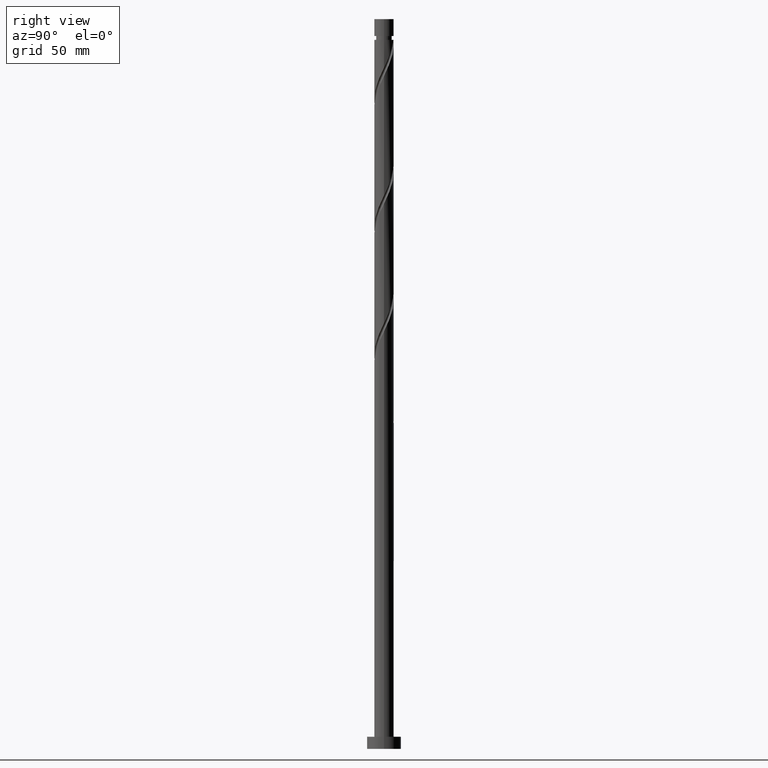
[diagram: clean part render]
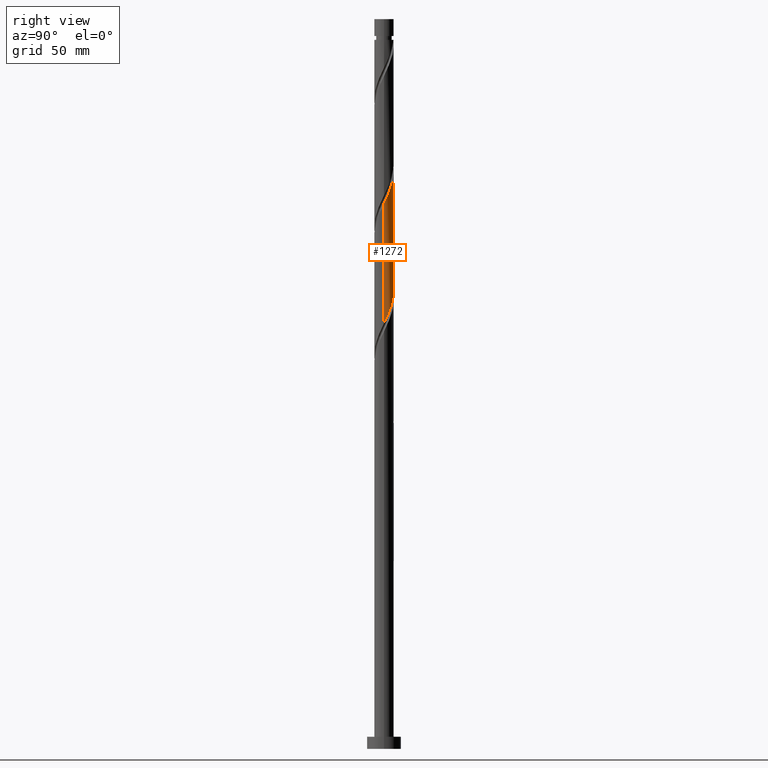
[diagram: same view with one face highlighted and labeled with its STEP entity id]
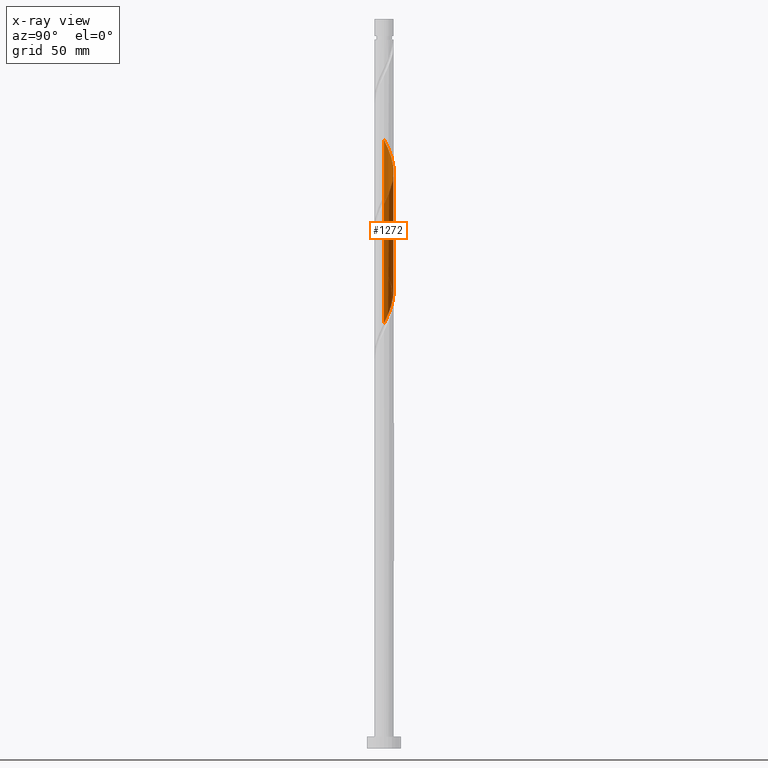
[diagram: x-ray of the same camera — body ghosted, the highlighted face saturated]
A machine part, right view. The second image highlights one B-rep face of the part: STEP entity #1272.
The next image is the same camera in x-ray: the body ghosted, the highlighted face saturated — about 0% of this face is hidden behind the body in this view.
In plain terms, the highlighted cylindrical surface (edge-blend (fillet) strip) has radius 4 mm, axis along (-0, -0, -1).
Its self-contained STEP definition (entity closure, byte-faithful):
#106 = EDGE_CURVE ( 'NONE', #1724, #1337, #1738, .T. ) ;
#110 = CARTESIAN_POINT ( 'NONE',  ( 3.830313472238021433, 1.237667874093733911, 226.7666729475623981 ) ) ;
#162 = CARTESIAN_POINT ( 'NONE',  ( -4.000000000000000000, 0.000000000000000000, 300.0000000000000000 ) ) ;
#183 = ORIENTED_EDGE ( 'NONE', *, *, #935, .T. ) ;
#187 = CARTESIAN_POINT ( 'NONE',  ( -4.000000000000004441, 0.04813158866556626475, 250.3042931814312055 ) ) ;
#197 = DIRECTION ( 'NONE',  ( -1.000000000000000000, 0.000000000000000000, 0.000000000000000000 ) ) ;
#203 =( BOUNDED_CURVE ( )  B_SPLINE_CURVE ( 2, ( #1891, #401, #981, #1584, #239, #411, #1742, #419, #998, #838, #1426, #1280, #700, #1291, #269, #1856, #534, #707, #1633, #852, #718, #1152, #1443, #1740, #417, #1762, #299, #1476, #1748, #1007, #1611 ),
 .UNSPECIFIED., .F., .T. ) 
 B_SPLINE_CURVE_WITH_KNOTS ( ( 3, 2, 2, 2, 2, 2, 2, 2, 2, 2, 2, 2, 2, 2, 2, 3 ),
 ( 0.6795303401299224166, 0.6875000000000000000, 0.6964285714285713969, 0.7053571428571429047, 0.7142857142857143016, 0.7232142857142856984, 0.7321428571428570953, 0.7410714285714286031, 0.7500000000000000000, 0.7589285714285713969, 0.7678571428571429047, 0.7767857142857143016, 0.7857142857142856984, 0.7946428571428570953, 0.8035714285714286031, 0.8045303401299221946 ),
 .UNSPECIFIED. ) 
 CURVE ( )  GEOMETRIC_REPRESENTATION_ITEM ( )  RATIONAL_B_SPLINE_CURVE ( ( 0.9079949616362031906, 0.9039886423360669054, 0.9090909090909334855, 0.9033747362666083580, 0.9090909090909334855, 0.9033747362666083580, 0.9090909090909334855, 0.9033747362666083580, 0.9090909090909334855, 0.9033747362666083580, 0.9090909090909334855, 0.9033747362666083580, 0.9090909090909334855, 0.9033747362666083580, 0.9090909090909334855, 0.9033747362666083580, 0.9090909090909334855, 0.9033747362666083580, 0.9090909090909334855, 0.9033747362666083580, 0.9090909090909334855, 0.9033747362666083580, 0.9090909090909334855, 0.9033747362666083580, 0.9090909090909334855, 0.9033747362666083580, 0.9090909090909334855, 0.9033747362666083580, 0.9090909090909334855, 0.9084770030214751602, 0.9079949616362034126 ) ) 
 REPRESENTATION_ITEM ( '' )  );
#213 = CYLINDRICAL_SURFACE ( 'NONE', #709, 4.000000000000000000 ) ;
#222 = EDGE_LOOP ( 'NONE', ( #921, #183, #1528, #969 ) ) ;
#227 = CARTESIAN_POINT ( 'NONE',  ( -3.877165057846941654, 0.9836620935111629604, 248.3291729475624550 ) ) ;
#239 = CARTESIAN_POINT ( 'NONE',  ( -3.644592988728935445, 1.648314880873155142, 197.7041729475623981 ) ) ;
#267 = CARTESIAN_POINT ( 'NONE',  ( -0.3543120252768621192, 4.009686527761989971, 238.0166729475623981 ) ) ;
#269 = CARTESIAN_POINT ( 'NONE',  ( -0.09624924134434953427, 3.998841842776559741, 188.3291729475623413 ) ) ;
#275 = CARTESIAN_POINT ( 'NONE',  ( -2.417986421170497557, 3.186430866508032977, 242.7041729475623981 ) ) ;
#299 = CARTESIAN_POINT ( 'NONE',  ( 3.877165057846936769, 0.9836620935111599628, 177.0791729475623697 ) ) ;
#309 = CARTESIAN_POINT ( 'NONE',  ( 2.568487795263851847, 3.066410025678347306, 231.4541729475624265 ) ) ;
#331 = CARTESIAN_POINT ( 'NONE',  ( -3.998841842776565958, 0.09624924134435045020, 250.2041729475624265 ) ) ;
#366 = CARTESIAN_POINT ( 'NONE',  ( -3.766332957902740475, 1.420513679056762291, 247.3916729475623981 ) ) ;
#401 = CARTESIAN_POINT ( 'NONE',  ( -3.999999999999994671, 0.4020151261037036572, 200.4154189465048432 ) ) ;
#408 = CARTESIAN_POINT ( 'NONE',  ( 3.920000000000005258, 0.7959899496852977929, 225.8291729475624265 ) ) ;
#411 = CARTESIAN_POINT ( 'NONE',  ( -3.458872505219855675, 2.058961887652576817, 196.7666729475624550 ) ) ;
#417 = CARTESIAN_POINT ( 'NONE',  ( 3.561071027285505952, 1.821750020894124855, 178.9541729475623981 ) ) ;
#419 = CARTESIAN_POINT ( 'NONE',  ( -2.913989227796199621, 2.777010954688412081, 194.8916729475624834 ) ) ;
#443 = CARTESIAN_POINT ( 'NONE',  ( -4.000000000000005329, 4.955356809146651200E-15, 250.4046558696563238 ) ) ;
#451 = CARTESIAN_POINT ( 'NONE',  ( 2.913989227796204950, 2.777010954688415634, 230.5166729475623981 ) ) ;
#473 = CARTESIAN_POINT ( 'NONE',  ( 0.000000000000000000, 0.000000000000000000, 300.0000000000000000 ) ) ;
#534 = CARTESIAN_POINT ( 'NONE',  ( 0.7959899496852991252, 3.919999999999999041, 186.4541729475623981 ) ) ;
#542 = CARTESIAN_POINT ( 'NONE',  ( -3.355809096668281200, 2.222986362731496079, 245.5166729475623981 ) ) ;
#558 = CARTESIAN_POINT ( 'NONE',  ( 2.222986362731496524, 3.355809096668280755, 232.3916729475624265 ) ) ;
#574 = CARTESIAN_POINT ( 'NONE',  ( 3.186430866508034754, 2.417986421170496669, 229.5791729475624265 ) ) ;
#657 = DIRECTION ( 'NONE',  ( -0.000000000000000000, -0.000000000000000000, -1.000000000000000000 ) ) ;
#687 = CARTESIAN_POINT ( 'NONE',  ( 4.000000000000006217, 0.4020151261036807311, 224.9929269486199814 ) ) ;
#700 = CARTESIAN_POINT ( 'NONE',  ( -0.9836620935111607400, 3.877165057846935436, 190.2041729475623697 ) ) ;
#707 = CARTESIAN_POINT ( 'NONE',  ( 1.237667874093734133, 3.830313472238014771, 185.5166729475624265 ) ) ;
#709 = AXIS2_PLACEMENT_3D ( 'NONE', #473, #657, #197 ) ;
#710 = LINE ( 'NONE', #1462, #1261 ) ;
#718 = CARTESIAN_POINT ( 'NONE',  ( 2.417986421170494893, 3.186430866508027648, 182.7041729475623981 ) ) ;
#753 = DIRECTION ( 'NONE',  ( -0.000000000000000000, -0.000000000000000000, -1.000000000000000000 ) ) ;
#816 = CARTESIAN_POINT ( 'NONE',  ( -3.987997157791141500, 0.5468105079655638523, 249.2666729475624265 ) ) ;
#838 = CARTESIAN_POINT ( 'NONE',  ( -2.222986362731492527, 3.355809096668277203, 193.0166729475623981 ) ) ;
#851 = CARTESIAN_POINT ( 'NONE',  ( -0.7959899496852976819, 3.920000000000005258, 238.9541729475624834 ) ) ;
#852 = CARTESIAN_POINT ( 'NONE',  ( 2.058961887652577261, 3.458872505219854787, 183.6416729475624550 ) ) ;
#858 = CARTESIAN_POINT ( 'NONE',  ( -2.777010954688416522, 2.913989227796204950, 243.6416729475623981 ) ) ;
#881 = LINE ( 'NONE', #162, #1419 ) ;
#921 = ORIENTED_EDGE ( 'NONE', *, *, #106, .F. ) ;
#935 = EDGE_CURVE ( 'NONE', #1724, #942, #710, .T. ) ;
#942 = VERTEX_POINT ( 'NONE', #1750 ) ;
#969 = ORIENTED_EDGE ( 'NONE', *, *, #1617, .F. ) ;
#981 = CARTESIAN_POINT ( 'NONE',  ( -3.919999999999999041, 0.7959899496852982370, 199.5791729475623981 ) ) ;
#996 = CARTESIAN_POINT ( 'NONE',  ( 0.5468105079655646295, 3.987997157791141500, 236.1416729475625118 ) ) ;
#998 = CARTESIAN_POINT ( 'NONE',  ( -2.568487795263846518, 3.066410025678343754, 193.9541729475623697 ) ) ;
#1006 = CARTESIAN_POINT ( 'NONE',  ( -2.058961887652579037, 3.458872505219861004, 241.7666729475624265 ) ) ;
#1007 = CARTESIAN_POINT ( 'NONE',  ( 3.999999999999999112, 0.04813158866555360821, 175.1040527136935054 ) ) ;
#1145 = CARTESIAN_POINT ( 'NONE',  ( 1.821750020894129518, 3.561071027285510837, 233.3291729475624834 ) ) ;
#1151 = CARTESIAN_POINT ( 'NONE',  ( 0.9836620935111639596, 3.877165057846941654, 235.2041729475624265 ) ) ;
#1152 = CARTESIAN_POINT ( 'NONE',  ( 2.777010954688412969, 2.913989227796199177, 181.7666729475623697 ) ) ;
#1261 = VECTOR ( 'NONE', #1453, 1000.000000000000000 ) ;
#1268 = CARTESIAN_POINT ( 'NONE',  ( -1.648314880873156918, 3.644592988728940774, 240.8291729475624265 ) ) ;
#1272 = ADVANCED_FACE ( 'NONE', ( #1378 ), #213, .T. ) ;
#1280 = CARTESIAN_POINT ( 'NONE',  ( -1.420513679056759626, 3.766332957902735590, 191.1416729475623981 ) ) ;
#1291 = CARTESIAN_POINT ( 'NONE',  ( -0.5468105079655622980, 3.987997157791136171, 189.2666729475624265 ) ) ;
#1296 = CARTESIAN_POINT ( 'NONE',  ( 3.458872505219861448, 2.058961887652578149, 228.6416729475623981 ) ) ;
#1311 = EDGE_CURVE ( 'NONE', #1502, #942, #203, .T. ) ;
#1337 = VERTEX_POINT ( 'NONE', #443 ) ;
#1346 = CARTESIAN_POINT ( 'NONE',  ( -3.999999999999998224, 2.194088707664344929E-15, 201.2536900254683871 ) ) ;
#1352 = CARTESIAN_POINT ( 'NONE',  ( -4.000000000000005329, 4.955356809146651200E-15, 250.4046558696563238 ) ) ;
#1378 = FACE_OUTER_BOUND ( 'NONE', #222, .T. ) ;
#1398 = CARTESIAN_POINT ( 'NONE',  ( 4.000000000000005329, 6.119567143825683200E-16, 224.1546558696563523 ) ) ;
#1419 = VECTOR ( 'NONE', #753, 1000.000000000000000 ) ;
#1426 = CARTESIAN_POINT ( 'NONE',  ( -1.821750020894125521, 3.561071027285505952, 192.0791729475623697 ) ) ;
#1442 = CARTESIAN_POINT ( 'NONE',  ( -1.237667874093734799, 3.830313472238021433, 239.8916729475624550 ) ) ;
#1443 = CARTESIAN_POINT ( 'NONE',  ( 3.066410025678344198, 2.568487795263845186, 180.8291729475623697 ) ) ;
#1453 = DIRECTION ( 'NONE',  ( -0.000000000000000000, -0.000000000000000000, -1.000000000000000000 ) ) ;
#1462 = CARTESIAN_POINT ( 'NONE',  ( 4.000000000000000000, 4.898587196589412829E-16, 300.0000000000000000 ) ) ;
#1476 = CARTESIAN_POINT ( 'NONE',  ( 3.987997157791136171, 0.5468105079655612988, 176.1416729475624550 ) ) ;
#1502 = VERTEX_POINT ( 'NONE', #1346 ) ;
#1508 = CARTESIAN_POINT ( 'NONE',  ( -3.561071027285510837, 1.821750020894129074, 246.4541729475624834 ) ) ;
#1528 = ORIENTED_EDGE ( 'NONE', *, *, #1311, .F. ) ;
#1584 = CARTESIAN_POINT ( 'NONE',  ( -3.830313472238014771, 1.237667874093733245, 198.6416729475624265 ) ) ;
#1601 = CARTESIAN_POINT ( 'NONE',  ( 0.09624924134435140777, 3.998841842776565958, 237.0791729475624834 ) ) ;
#1611 = CARTESIAN_POINT ( 'NONE',  ( 3.999999999999998224, -2.634399026549366747E-15, 175.0036900254684156 ) ) ;
#1617 = EDGE_CURVE ( 'NONE', #1337, #1502, #881, .T. ) ;
#1633 = CARTESIAN_POINT ( 'NONE',  ( 1.648314880873155586, 3.644592988728935001, 184.5791729475623697 ) ) ;
#1724 = VERTEX_POINT ( 'NONE', #1398 ) ;
#1738 =( BOUNDED_CURVE ( )  B_SPLINE_CURVE ( 2, ( #1906, #687, #408, #110, #1887, #1296, #574, #451, #309, #558, #1145, #1739, #1151, #996, #1601, #267, #851, #1442, #1268, #1006, #275, #858, #1867, #542, #1508, #366, #227, #816, #331, #187, #1352 ),
 .UNSPECIFIED., .F., .T. ) 
 B_SPLINE_CURVE_WITH_KNOTS ( ( 3, 2, 2, 2, 2, 2, 2, 2, 2, 2, 2, 2, 2, 2, 2, 3 ),
 ( 0.4295303401299219725, 0.4375000000000000000, 0.4464285714285713969, 0.4553571428571429047, 0.4642857142857143016, 0.4732142857142856984, 0.4821428571428570953, 0.4910714285714286031, 0.5000000000000000000, 0.5089285714285713969, 0.5178571428571427937, 0.5267857142857143016, 0.5357142857142856984, 0.5446428571428572063, 0.5535714285714286031, 0.5545303401299219725 ),
 .UNSPECIFIED. ) 
 CURVE ( )  GEOMETRIC_REPRESENTATION_ITEM ( )  RATIONAL_B_SPLINE_CURVE ( ( 0.9079949616362096299, 0.9039886423360725676, 0.9090909090909393697, 0.9033747362666143532, 0.9090909090909393697, 0.9033747362666143532, 0.9090909090909393697, 0.9033747362666143532, 0.9090909090909393697, 0.9033747362666143532, 0.9090909090909393697, 0.9033747362666143532, 0.9090909090909393697, 0.9033747362666143532, 0.9090909090909393697, 0.9033747362666143532, 0.9090909090909393697, 0.9033747362666143532, 0.9090909090909393697, 0.9033747362666143532, 0.9090909090909393697, 0.9033747362666143532, 0.9090909090909393697, 0.9033747362666143532, 0.9090909090909393697, 0.9033747362666143532, 0.9090909090909393697, 0.9033747362666143532, 0.9090909090909393697, 0.9084770030214812664, 0.9079949616362096299 ) ) 
 REPRESENTATION_ITEM ( '' )  );
#1739 = CARTESIAN_POINT ( 'NONE',  ( 1.420513679056762957, 3.766332957902740475, 234.2666729475624550 ) ) ;
#1740 = CARTESIAN_POINT ( 'NONE',  ( 3.355809096668277203, 2.222986362731491639, 179.8916729475624265 ) ) ;
#1742 = CARTESIAN_POINT ( 'NONE',  ( -3.186430866508028092, 2.417986421170494449, 195.8291729475623981 ) ) ;
#1748 = CARTESIAN_POINT ( 'NONE',  ( 3.998841842776559741, 0.09624924134434886813, 175.2041729475624265 ) ) ;
#1750 = CARTESIAN_POINT ( 'NONE',  ( 3.999999999999998224, -2.634399026549366747E-15, 175.0036900254684156 ) ) ;
#1762 = CARTESIAN_POINT ( 'NONE',  ( 3.766332957902735590, 1.420513679056758516, 178.0166729475624265 ) ) ;
#1856 = CARTESIAN_POINT ( 'NONE',  ( 0.3543120252768630074, 4.009686527761982866, 187.3916729475624265 ) ) ;
#1867 = CARTESIAN_POINT ( 'NONE',  ( -3.066410025678347306, 2.568487795263850959, 244.5791729475624265 ) ) ;
#1887 = CARTESIAN_POINT ( 'NONE',  ( 3.644592988728941219, 1.648314880873156474, 227.7041729475623981 ) ) ;
#1891 = CARTESIAN_POINT ( 'NONE',  ( -3.999999999999998224, 2.194088707664344929E-15, 201.2536900254683871 ) ) ;
#1906 = CARTESIAN_POINT ( 'NONE',  ( 4.000000000000005329, 6.119567143825683200E-16, 224.1546558696563238 ) ) ;